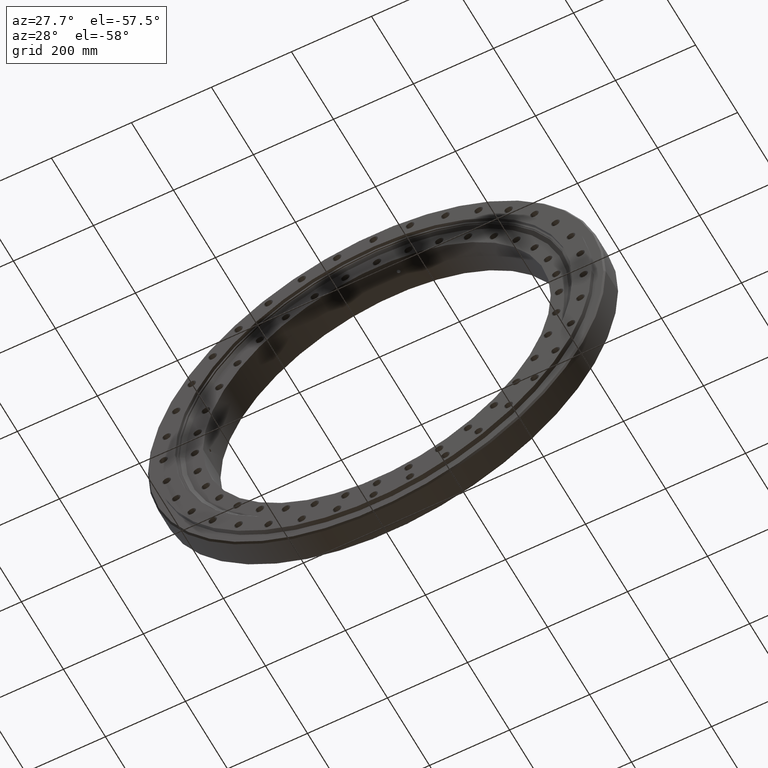
[diagram: clean part render]
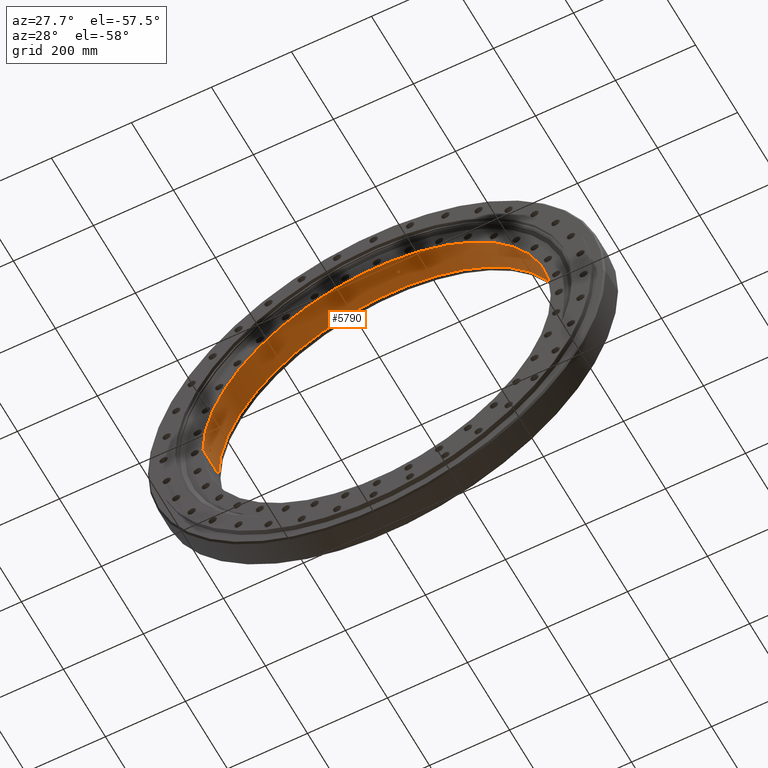
[diagram: same view with one face highlighted and labeled with its STEP entity id]
A machine part, auxiliary view. The second image highlights one B-rep face of the part: STEP entity #5790.
In plain terms, the highlighted cylindrical surface (partial cylindrical patch) has radius 434.5 mm, axis along (0, 1, 0).
Its self-contained STEP definition (entity closure, byte-faithful):
#2 = CARTESIAN_POINT ( 'NONE',  ( -433.0374636575012300, 3.904599707419790500, 35.62112478823369300 ) ) ;
#13 = VERTEX_POINT ( 'NONE', #8801 ) ;
#28 = CARTESIAN_POINT ( 'NONE',  ( -433.0771731805378400, 3.578754350650498000, 35.13504706208550500 ) ) ;
#38 = CARTESIAN_POINT ( 'NONE',  ( -433.1290335322051400, 2.972765572001586400, 34.48962820245196800 ) ) ;
#63 = CARTESIAN_POINT ( 'NONE',  ( -433.1803683367097600, 1.994555008645433600, 33.83831032099117000 ) ) ;
#97 = CARTESIAN_POINT ( 'NONE',  ( -433.1437837102849900, 2.744956606756875100, 34.30363231103421400 ) ) ;
#117 = VERTEX_POINT ( 'NONE', #360 ) ;
#215 = CARTESIAN_POINT ( 'NONE',  ( -433.2155825675864700, 6.637964052413518400E-009, 33.38426306849773800 ) ) ;
#313 = CARTESIAN_POINT ( 'NONE',  ( -433.2133241049115200, 0.5919623323893523600, 33.41360688904765700 ) ) ;
#360 = CARTESIAN_POINT ( 'NONE',  ( 434.5000000000000000, -31.50000000000004300, 5.321090342295249800E-014 ) ) ;
#485 = EDGE_CURVE ( 'NONE', #117, #8745, #2660, .T. ) ;
#487 = VERTEX_POINT ( 'NONE', #215 ) ;
#746 = ORIENTED_EDGE ( 'NONE', *, *, #1013, .T. ) ;
#978 = DIRECTION ( 'NONE',  ( -1.000000000000000000, 2.395475455894325200E-017, 0.0000000000000000000 ) ) ;
#984 = CARTESIAN_POINT ( 'NONE',  ( -434.5000000000000000, 31.02910628019325400, 0.0000000000000000000 ) ) ;
#1013 = EDGE_CURVE ( 'NONE', #13, #487, #4119, .T. ) ;
#1160 = B_SPLINE_CURVE_WITH_KNOTS ( 'NONE', 3,
 ( #4623, #6303, #5236, #5119, #5019, #7438, #5431, #6713, #3748, #2891, #5825, #6571, #2464, #8247, #6084, #6171, #8232, #6867, #6061, #6264, #7830, #6876, #7851, #6785, #4828, #5064, #5368, #5968, #5036, #7170, #5978, #5883, #4778, #4958 ),
 .UNSPECIFIED., .F., .F.,
 ( 4, 2, 2, 2, 2, 2, 2, 2, 2, 2, 2, 2, 2, 2, 2, 2, 4 ),
 ( 0.01406915167869698100, 0.01494827514178797900, 0.01582739860487897600, 0.01670652206796997500, 0.01758564553106097300, 0.01846476899415197200, 0.01934389245724296700, 0.02022301592033396600, 0.02110213938342496400, 0.02198126284651596300, 0.02286038630960696100, 0.02373950977269796000, 0.02461863323578895900, 0.02549775669887995700, 0.02637688016197095600, 0.02725600362506195100, 0.02813512708815295000 ),
 .UNSPECIFIED. ) ;
#1207 = CARTESIAN_POINT ( 'NONE',  ( -433.1693934311617800, 2.257526789093735200, 33.97871614808489200 ) ) ;
#1236 = CARTESIAN_POINT ( 'NONE',  ( -433.0954764404812600, 3.392749482292282800, 34.90848648792938000 ) ) ;
#1400 = CARTESIAN_POINT ( 'NONE',  ( 34.30363231103572000, 2.744956606756871600, 433.1437837102847700 ) ) ;
#1426 = EDGE_CURVE ( 'NONE', #8745, #1707, #1700, .T. ) ;
#1516 = CARTESIAN_POINT ( 'NONE',  ( 42.35001535132498400, 6.637964829185519400E-009, 432.4311808828574000 ) ) ;
#1534 = EDGE_LOOP ( 'NONE', ( #7889, #4565 ) ) ;
#1619 = CARTESIAN_POINT ( 'NONE',  ( 39.03264915551811500, 4.355842356104124800, 432.7433265491052900 ) ) ;
#1700 = CIRCLE ( 'NONE', #3020, 434.5000000000000000 ) ;
#1707 = VERTEX_POINT ( 'NONE', #2573 ) ;
#1715 = AXIS2_PLACEMENT_3D ( 'NONE', #3576, #2064, #978 ) ;
#1793 = CARTESIAN_POINT ( 'NONE',  ( 42.20718503618945800, 1.164869531272804300, 432.4451488908918600 ) ) ;
#1817 = CARTESIAN_POINT ( 'NONE',  ( 434.5000000000000000, 31.02910628019323300, 5.321090342295249800E-014 ) ) ;
#1850 = B_SPLINE_CURVE_WITH_KNOTS ( 'NONE', 3,
 ( #2701, #7163, #5446, #4654, #5512, #6399, #5509, #4641, #6635, #4640, #5497, #5486, #5469, #5668, #5700, #5689, #5246, #5202, #5192, #7934, #5144, #5844, #5059, #4917, #4601, #5589, #5048, #5547, #5259, #4579, #4625, #6861, #5300, #5635 ),
 .UNSPECIFIED., .F., .F.,
 ( 4, 2, 2, 2, 2, 2, 2, 2, 2, 2, 2, 2, 2, 2, 2, 2, 4 ),
 ( 0.01406915167869698800, 0.01494827514178798600, 0.01582739860487898700, 0.01670652206796998500, 0.01758564553106098400, 0.01846476899415198200, 0.01934389245724298100, 0.02022301592033398000, 0.02110213938342497800, 0.02198126284651597700, 0.02286038630960697500, 0.02373950977269797400, 0.02461863323578897300, 0.02549775669887997100, 0.02637688016197097000, 0.02725600362506196800, 0.02813512708815296700 ),
 .UNSPECIFIED. ) ;
#2064 = DIRECTION ( 'NONE',  ( 2.727064569436389700E-017, 1.000000000000000000, 0.0000000000000000000 ) ) ;
#2307 = AXIS2_PLACEMENT_3D ( 'NONE', #6684, #7716, #2896 ) ;
#2327 = ORIENTED_EDGE ( 'NONE', *, *, #485, .F. ) ;
#2380 = CARTESIAN_POINT ( 'NONE',  ( 434.5000000000000000, 42.49999999999991500, 5.321090342295249800E-014 ) ) ;
#2437 = CARTESIAN_POINT ( 'NONE',  ( 39.85441053610423300, 4.045120570742950500, 432.6684056949433700 ) ) ;
#2443 = CARTESIAN_POINT ( 'NONE',  ( 35.88379386528118400, 4.045563657391223700, 433.0157936515178100 ) ) ;
#2462 = CARTESIAN_POINT ( 'NONE',  ( 34.48962820245348100, 2.972765572001586900, 433.1290335322049700 ) ) ;
#2464 = CARTESIAN_POINT ( 'NONE',  ( -433.0162404187527200, -4.042875108975554400, 35.87839931879109700 ) ) ;
#2529 = CARTESIAN_POINT ( 'NONE',  ( -433.2155825675864700, 6.637964052413518400E-009, 33.38426306849773800 ) ) ;
#2573 = CARTESIAN_POINT ( 'NONE',  ( -434.5000000000000000, 42.49999999999991500, 0.0000000000000000000 ) ) ;
#2577 = CARTESIAN_POINT ( 'NONE',  ( 38.16315074150517700, 4.499895690619876400, 432.8208752737721200 ) ) ;
#2625 = CARTESIAN_POINT ( 'NONE',  ( 41.24417892313981300, 2.974982233967884400, 432.5381033173731600 ) ) ;
#2660 = LINE ( 'NONE', #1817, #8462 ) ;
#2685 = FACE_BOUND ( 'NONE', #7898, .T. ) ;
#2701 = CARTESIAN_POINT ( 'NONE',  ( 33.38426306849925100, 6.637964052413520000E-009, 433.2155825675863500 ) ) ;
#2759 = DIRECTION ( 'NONE',  ( 2.727064569436389700E-017, 1.000000000000000000, 0.0000000000000000000 ) ) ;
#2872 = CARTESIAN_POINT ( 'NONE',  ( 36.70628219682127000, 4.355941297530539400, 432.9468583213486600 ) ) ;
#2891 = CARTESIAN_POINT ( 'NONE',  ( -433.0959432817362500, -3.387315570326025600, 34.90267731088765400 ) ) ;
#2896 = DIRECTION ( 'NONE',  ( -1.000000000000000000, 3.193967274525766700E-017, 0.0000000000000000000 ) ) ;
#3020 = AXIS2_PLACEMENT_3D ( 'NONE', #3380, #3382, #3267 ) ;
#3023 = CARTESIAN_POINT ( 'NONE',  ( 41.43343276022952900, 2.743370451744398900, 432.5199964428794600 ) ) ;
#3055 = CARTESIAN_POINT ( 'NONE',  ( 42.35001535132498400, 0.2973276140941214000, 432.4311808828572900 ) ) ;
#3198 = CARTESIAN_POINT ( 'NONE',  ( 42.12105492972209200, 1.450674122875361500, 432.4535576136622700 ) ) ;
#3207 = CARTESIAN_POINT ( 'NONE',  ( -433.0157936515179800, 4.045563657391222800, 35.88379386527967800 ) ) ;
#3219 = CARTESIAN_POINT ( 'NONE',  ( -432.6442831600647900, 3.905344257071405900, 40.11526849472515700 ) ) ;
#3267 = DIRECTION ( 'NONE',  ( -1.000000000000000000, 0.0000000000000000000, 0.0000000000000000000 ) ) ;
#3293 = CARTESIAN_POINT ( 'NONE',  ( -432.7433265491053500, 4.355842356104121300, 39.03264915551660900 ) ) ;
#3305 = EDGE_CURVE ( 'NONE', #3929, #8710, #3353, .T. ) ;
#3307 = CARTESIAN_POINT ( 'NONE',  ( -432.7177453912999600, 4.269500652078852100, 39.31508806113228600 ) ) ;
#3322 = CARTESIAN_POINT ( 'NONE',  ( 39.31508806113379300, 4.269500652078853000, 432.7177453912996700 ) ) ;
#3353 = B_SPLINE_CURVE_WITH_KNOTS ( 'NONE', 3,
 ( #1516, #3055, #3809, #1793, #3198, #7317, #4164, #3023, #2625, #6487, #6834, #6604, #2437, #3322, #1619, #4526, #2577, #8511, #6690, #2872, #8160, #2443, #6530, #7734, #6659, #2462, #1400, #3852, #3792, #7505, #6169, #4726, #3933, #3988 ),
 .UNSPECIFIED., .F., .F.,
 ( 4, 2, 2, 2, 2, 2, 2, 2, 2, 2, 2, 2, 2, 2, 2, 2, 4 ),
 ( 2.183248074406085200E-018, 0.0008793219799185637900, 0.001758643959837125400, 0.002637965939755686800, 0.003517287919674248700, 0.004396609899592810900, 0.005275931879511371900, 0.006155253859429933800, 0.007034575839348495600, 0.007913897819267056600, 0.008793219799185618400, 0.009672541779104180300, 0.01055186375902274000, 0.01143118573894130200, 0.01231050771885986400, 0.01318982969877842600, 0.01406915167869698800 ),
 .UNSPECIFIED. ) ;
#3358 = ORIENTED_EDGE ( 'NONE', *, *, #5120, .T. ) ;
#3380 = CARTESIAN_POINT ( 'NONE',  ( 2.005186205590374900E-015, 42.49999999999991500, 0.0000000000000000000 ) ) ;
#3382 = DIRECTION ( 'NONE',  ( -0.0000000000000000000, -1.000000000000000000, -0.0000000000000000000 ) ) ;
#3388 = CARTESIAN_POINT ( 'NONE',  ( -432.8977169013027200, 4.470844688872517700, 37.28136243055198700 ) ) ;
#3419 = CARTESIAN_POINT ( 'NONE',  ( -432.8720393330029900, 4.500103757308526300, 37.57836759307173200 ) ) ;
#3439 = CARTESIAN_POINT ( 'NONE',  ( -432.8208752737721700, 4.499895690619876400, 38.16315074150365700 ) ) ;
#3446 = CARTESIAN_POINT ( 'NONE',  ( -432.7951276124038600, 4.471353998556145900, 38.45402303851145100 ) ) ;
#3576 = CARTESIAN_POINT ( 'NONE',  ( 1.692367527159823000E-015, 31.02910628019324300, 0.0000000000000000000 ) ) ;
#3622 = LINE ( 'NONE', #984, #4199 ) ;
#3634 = CARTESIAN_POINT ( 'NONE',  ( 33.38426306849925100, 6.637964052413520000E-009, 433.2155825675863500 ) ) ;
#3748 = CARTESIAN_POINT ( 'NONE',  ( -433.1290492069080100, -2.972154527333182600, 34.48941437143707100 ) ) ;
#3792 = CARTESIAN_POINT ( 'NONE',  ( 33.83831032099267600, 1.994555008645433100, 433.1803683367097100 ) ) ;
#3809 = CARTESIAN_POINT ( 'NONE',  ( 42.32097475310098400, 0.5896857251151350600, 432.4340277590238800 ) ) ;
#3852 = CARTESIAN_POINT ( 'NONE',  ( 33.97871614808639200, 2.257526789093731600, 433.1693934311615000 ) ) ;
#3929 = VERTEX_POINT ( 'NONE', #8551 ) ;
#3933 = CARTESIAN_POINT ( 'NONE',  ( 33.38426306849925100, 0.2936965947589150200, 433.2155825675864100 ) ) ;
#3988 = CARTESIAN_POINT ( 'NONE',  ( 33.38426306849925100, 6.637964052413520000E-009, 433.2155825675863500 ) ) ;
#4119 = B_SPLINE_CURVE_WITH_KNOTS ( 'NONE', 3,
 ( #8896, #8814, #8762, #8750, #8743, #8741, #7233, #7251, #8519, #7276, #8731, #3219, #5619, #3307, #3293, #3446, #3439, #3419, #3388, #8681, #4282, #3207, #2, #28, #1236, #38, #97, #1207, #63, #7848, #6160, #313, #7435, #2529 ),
 .UNSPECIFIED., .F., .F.,
 ( 4, 2, 2, 2, 2, 2, 2, 2, 2, 2, 2, 2, 2, 2, 2, 2, 4 ),
 ( 1.141874489184473000E-018, 0.0008793219799185609700, 0.001758643959837120600, 0.002637965939755681200, 0.003517287919674242200, 0.004396609899592803100, 0.005275931879511364100, 0.006155253859429926000, 0.007034575839348486900, 0.007913897819267049600, 0.008793219799185609700, 0.009672541779104171600, 0.01055186375902273300, 0.01143118573894129500, 0.01231050771885985700, 0.01318982969877841700, 0.01406915167869698100 ),
 .UNSPECIFIED. ) ;
#4164 = CARTESIAN_POINT ( 'NONE',  ( 41.75857143606785400, 2.254172641134395900, 432.4887263095579900 ) ) ;
#4199 = VECTOR ( 'NONE', #2759, 1000.000000000000000 ) ;
#4282 = CARTESIAN_POINT ( 'NONE',  ( -432.9704564998753000, 4.270947915774015300, 36.42674857998591900 ) ) ;
#4345 = EDGE_LOOP ( 'NONE', ( #2327, #7635, #3358, #4866 ) ) ;
#4513 = FACE_OUTER_BOUND ( 'NONE', #4345, .T. ) ;
#4516 = CARTESIAN_POINT ( 'NONE',  ( -434.5000000000000000, -31.50000000000001400, 0.0000000000000000000 ) ) ;
#4526 = CARTESIAN_POINT ( 'NONE',  ( 38.45402303851296500, 4.471353998556145900, 432.7951276124038000 ) ) ;
#4565 = ORIENTED_EDGE ( 'NONE', *, *, #8207, .T. ) ;
#4579 = CARTESIAN_POINT ( 'NONE',  ( 42.11920295704316400, -1.455751492898972100, 432.4537378550976400 ) ) ;
#4601 = CARTESIAN_POINT ( 'NONE',  ( 40.82884338236299700, -3.391800875043286600, 432.5775060662691700 ) ) ;
#4623 = CARTESIAN_POINT ( 'NONE',  ( -433.2155825675864700, 6.637964052413518400E-009, 33.38426306849773800 ) ) ;
#4625 = CARTESIAN_POINT ( 'NONE',  ( 42.20508617102623100, -1.173646030593314100, 432.4453538789281900 ) ) ;
#4640 = CARTESIAN_POINT ( 'NONE',  ( 34.90267731088916000, -3.387315570326025600, 433.0959432817360800 ) ) ;
#4641 = CARTESIAN_POINT ( 'NONE',  ( 34.30374165114061200, -2.745438725071159200, 433.1437756590626700 ) ) ;
#4646 = FACE_BOUND ( 'NONE', #1534, .T. ) ;
#4654 = CARTESIAN_POINT ( 'NONE',  ( 33.52733253529919500, -1.165417203309397000, 433.2045374659136900 ) ) ;
#4726 = CARTESIAN_POINT ( 'NONE',  ( 33.41360688904915600, 0.5919623323893533600, 433.2133241049113500 ) ) ;
#4778 = CARTESIAN_POINT ( 'NONE',  ( -432.4311808828575700, -0.2972604757664756800, 42.35001535132346400 ) ) ;
#4828 = CARTESIAN_POINT ( 'NONE',  ( -432.5775060662695100, -3.391800875043290600, 40.82884338236148400 ) ) ;
#4851 = CYLINDRICAL_SURFACE ( 'NONE', #1715, 434.5000000000000000 ) ;
#4866 = ORIENTED_EDGE ( 'NONE', *, *, #1426, .F. ) ;
#4917 = CARTESIAN_POINT ( 'NONE',  ( 40.59803262821609600, -3.581690878517647600, 432.5992481641980000 ) ) ;
#4958 = CARTESIAN_POINT ( 'NONE',  ( -432.4311808828575200, 6.637962326328891700E-009, 42.35001535132347100 ) ) ;
#5019 = CARTESIAN_POINT ( 'NONE',  ( -433.1978708877689400, -1.449887524020145600, 33.61349751919960500 ) ) ;
#5036 = CARTESIAN_POINT ( 'NONE',  ( -432.4754790182654500, -1.997039436460990900, 41.89537791336832100 ) ) ;
#5048 = CARTESIAN_POINT ( 'NONE',  ( 41.42819436716753500, -2.750359883711414300, 432.5204986491460200 ) ) ;
#5059 = CARTESIAN_POINT ( 'NONE',  ( 40.11120626622488300, -3.907535809011369200, 432.6446589262133100 ) ) ;
#5064 = CARTESIAN_POINT ( 'NONE',  ( -432.5382436357904800, -2.976678907166466500, 41.24270843337455300 ) ) ;
#5119 = CARTESIAN_POINT ( 'NONE',  ( -433.2045374659137500, -1.165417203309394800, 33.52733253529768100 ) ) ;
#5120 = EDGE_CURVE ( 'NONE', #7177, #1707, #3622, .T. ) ;
#5144 = CARTESIAN_POINT ( 'NONE',  ( 39.31015623875568800, -4.271334378078344200, 432.7181947883135500 ) ) ;
#5192 = CARTESIAN_POINT ( 'NONE',  ( 38.45344534380721100, -4.471227324604893000, 432.7951769558700900 ) ) ;
#5202 = CARTESIAN_POINT ( 'NONE',  ( 38.16096605951525300, -4.500248089098112900, 432.8210700724542300 ) ) ;
#5236 = CARTESIAN_POINT ( 'NONE',  ( -433.2133983649754300, -0.5854546264718805100, 33.41264408959497000 ) ) ;
#5246 = CARTESIAN_POINT ( 'NONE',  ( 37.56982914815139900, -4.499748710604370300, 432.8727826591071400 ) ) ;
#5259 = CARTESIAN_POINT ( 'NONE',  ( 41.89537791336983500, -1.997039436460982700, 432.4754790182652200 ) ) ;
#5300 = CARTESIAN_POINT ( 'NONE',  ( 42.35001535132498400, -0.2972604757664760700, 432.4311808828573500 ) ) ;
#5368 = CARTESIAN_POINT ( 'NONE',  ( -432.5204986491462500, -2.750359883711416500, 41.42819436716602900 ) ) ;
#5431 = CARTESIAN_POINT ( 'NONE',  ( -433.1696370397022500, -2.252558273748033600, 33.97561817464558200 ) ) ;
#5446 = CARTESIAN_POINT ( 'NONE',  ( 33.41264408959646200, -0.5854546264718821800, 433.2133983649753200 ) ) ;
#5469 = CARTESIAN_POINT ( 'NONE',  ( 35.87839931879261000, -4.042875108975554400, 433.0162404187525500 ) ) ;
#5486 = CARTESIAN_POINT ( 'NONE',  ( 35.62092463396994900, -3.904564216417030700, 433.0374805984832800 ) ) ;
#5497 = CARTESIAN_POINT ( 'NONE',  ( 35.13316265913988400, -3.577391995984359400, 433.0773265323723500 ) ) ;
#5509 = CARTESIAN_POINT ( 'NONE',  ( 33.97561817464708900, -2.252558273748038100, 433.1696370397021400 ) ) ;
#5512 = CARTESIAN_POINT ( 'NONE',  ( 33.61349751920111800, -1.449887524020150800, 433.1978708877687700 ) ) ;
#5547 = CARTESIAN_POINT ( 'NONE',  ( 41.75556241820388700, -2.259569865463237000, 432.4890172563567000 ) ) ;
#5589 = CARTESIAN_POINT ( 'NONE',  ( 41.24270843337608000, -2.976678907166461700, 432.5382436357903700 ) ) ;
#5619 = CARTESIAN_POINT ( 'NONE',  ( -432.6684056949434300, 4.045120570742950500, 39.85441053610273300 ) ) ;
#5635 = CARTESIAN_POINT ( 'NONE',  ( 42.35001535132498400, 6.637964829185519400E-009, 432.4311808828574000 ) ) ;
#5668 = CARTESIAN_POINT ( 'NONE',  ( 36.42058681919775200, -4.268829863394195500, 432.9709746158685600 ) ) ;
#5689 = CARTESIAN_POINT ( 'NONE',  ( 37.27884587939614400, -4.470445640292257200, 432.8979329618972000 ) ) ;
#5700 = CARTESIAN_POINT ( 'NONE',  ( 36.70573769866591400, -4.355728153560956900, 432.9469038263004000 ) ) ;
#5768 = ORIENTED_EDGE ( 'NONE', *, *, #8241, .T. ) ;
#5790 = ADVANCED_FACE ( 'NONE', ( #4513, #4646, #2685 ), #4851, .F. ) ;
#5825 = CARTESIAN_POINT ( 'NONE',  ( -433.0773265323725200, -3.577391995984359400, 35.13316265913836400 ) ) ;
#5844 = CARTESIAN_POINT ( 'NONE',  ( 39.85372313373152800, -4.045622400831324400, 432.6684703520145400 ) ) ;
#5883 = CARTESIAN_POINT ( 'NONE',  ( -432.4340269553736700, -0.5914368857770334600, 42.32098440885261700 ) ) ;
#5968 = CARTESIAN_POINT ( 'NONE',  ( -432.4890172563568700, -2.259569865463239700, 41.75556241820238800 ) ) ;
#5978 = CARTESIAN_POINT ( 'NONE',  ( -432.4453538789283000, -1.173646030593317600, 42.20508617102471000 ) ) ;
#6061 = CARTESIAN_POINT ( 'NONE',  ( -432.7951769558702600, -4.471227324604892100, 38.45344534380569700 ) ) ;
#6084 = CARTESIAN_POINT ( 'NONE',  ( -432.9469038263005100, -4.355728153560956900, 36.70573769866440700 ) ) ;
#6160 = CARTESIAN_POINT ( 'NONE',  ( -433.2044637908122100, 1.168564348647414200, 33.52828446368310000 ) ) ;
#6169 = CARTESIAN_POINT ( 'NONE',  ( 33.52828446368460600, 1.168564348647415300, 433.2044637908121000 ) ) ;
#6171 = CARTESIAN_POINT ( 'NONE',  ( -432.8979329618974200, -4.470445640292257200, 37.27884587939463000 ) ) ;
#6264 = CARTESIAN_POINT ( 'NONE',  ( -432.7439106145392300, -4.357378540987146400, 39.02615124641304300 ) ) ;
#6303 = CARTESIAN_POINT ( 'NONE',  ( -433.2155825675863000, -0.2936302761747243100, 33.38426306849773100 ) ) ;
#6399 = CARTESIAN_POINT ( 'NONE',  ( 33.83693893963778300, -1.991448773239265800, 433.1804752298567100 ) ) ;
#6411 = CIRCLE ( 'NONE', #2307, 434.5000000000000000 ) ;
#6487 = CARTESIAN_POINT ( 'NONE',  ( 40.83074539171125400, 3.390113032432390500, 432.5773264367791700 ) ) ;
#6507 = DIRECTION ( 'NONE',  ( 2.727064569436389700E-017, 1.000000000000000000, 0.0000000000000000000 ) ) ;
#6530 = CARTESIAN_POINT ( 'NONE',  ( 35.62112478823519300, 3.904599707419787800, 433.0374636575009500 ) ) ;
#6571 = CARTESIAN_POINT ( 'NONE',  ( -433.0374805984831700, -3.904564216417031100, 35.62092463396843600 ) ) ;
#6604 = CARTESIAN_POINT ( 'NONE',  ( 40.11526849472666400, 3.905344257071406300, 432.6442831600646700 ) ) ;
#6635 = CARTESIAN_POINT ( 'NONE',  ( 34.48941437143858500, -2.972154527333182600, 433.1290492069080100 ) ) ;
#6659 = CARTESIAN_POINT ( 'NONE',  ( 34.90848648793090100, 3.392749482292284100, 433.0954764404811500 ) ) ;
#6684 = CARTESIAN_POINT ( 'NONE',  ( -1.284157579255207000E-017, -31.50000000000002800, 0.0000000000000000000 ) ) ;
#6690 = CARTESIAN_POINT ( 'NONE',  ( 37.28136243055350000, 4.470844688872517700, 432.8977169013026600 ) ) ;
#6713 = CARTESIAN_POINT ( 'NONE',  ( -433.1437756590630100, -2.745438725071154700, 34.30374165113912000 ) ) ;
#6735 = EDGE_CURVE ( 'NONE', #7177, #117, #6411, .T. ) ;
#6785 = CARTESIAN_POINT ( 'NONE',  ( -432.5992481641981200, -3.581690878517652400, 40.59803262821456100 ) ) ;
#6834 = CARTESIAN_POINT ( 'NONE',  ( 40.60514735649871900, 3.576389277894958000, 432.5985812802063600 ) ) ;
#6861 = CARTESIAN_POINT ( 'NONE',  ( 42.32098440885412300, -0.5914368857770295800, 432.4340269553736700 ) ) ;
#6867 = CARTESIAN_POINT ( 'NONE',  ( -432.8210700724544600, -4.500248089098113800, 38.16096605951374000 ) ) ;
#6876 = CARTESIAN_POINT ( 'NONE',  ( -432.6684703520147100, -4.045622400831325300, 39.85372313373001400 ) ) ;
#7163 = CARTESIAN_POINT ( 'NONE',  ( 33.38426306849924400, -0.2936302761747253700, 433.2155825675863000 ) ) ;
#7170 = CARTESIAN_POINT ( 'NONE',  ( -432.4537378550976400, -1.455751492898981600, 42.11920295704164400 ) ) ;
#7177 = VERTEX_POINT ( 'NONE', #4516 ) ;
#7233 = CARTESIAN_POINT ( 'NONE',  ( -432.4887263095582700, 2.254172641134396700, 41.75857143606635400 ) ) ;
#7251 = CARTESIAN_POINT ( 'NONE',  ( -432.5199964428794600, 2.743370451744397500, 41.43343276022801500 ) ) ;
#7276 = CARTESIAN_POINT ( 'NONE',  ( -432.5773264367793400, 3.390113032432388700, 40.83074539170975500 ) ) ;
#7317 = CARTESIAN_POINT ( 'NONE',  ( 41.89618322568781400, 1.995683553930035300, 432.4754011411808400 ) ) ;
#7435 = CARTESIAN_POINT ( 'NONE',  ( -433.2155825675866400, 0.2936965947589156300, 33.38426306849776600 ) ) ;
#7438 = CARTESIAN_POINT ( 'NONE',  ( -433.1804752298569400, -1.991448773239261200, 33.83693893963627600 ) ) ;
#7505 = CARTESIAN_POINT ( 'NONE',  ( 33.61309180770979300, 1.449120904882258400, 433.1979025997629800 ) ) ;
#7635 = ORIENTED_EDGE ( 'NONE', *, *, #6735, .F. ) ;
#7716 = DIRECTION ( 'NONE',  ( 2.727064569436389700E-017, 1.000000000000000000, 0.0000000000000000000 ) ) ;
#7734 = CARTESIAN_POINT ( 'NONE',  ( 35.13504706208702500, 3.578754350650494900, 433.0771731805376700 ) ) ;
#7830 = CARTESIAN_POINT ( 'NONE',  ( -432.7181947883136700, -4.271334378078343300, 39.31015623875416800 ) ) ;
#7848 = CARTESIAN_POINT ( 'NONE',  ( -433.1979025997629800, 1.449120904882259300, 33.61309180770828700 ) ) ;
#7851 = CARTESIAN_POINT ( 'NONE',  ( -432.6446589262134800, -3.907535809011373700, 40.11120626622337000 ) ) ;
#7889 = ORIENTED_EDGE ( 'NONE', *, *, #3305, .T. ) ;
#7898 = EDGE_LOOP ( 'NONE', ( #746, #5768 ) ) ;
#7934 = CARTESIAN_POINT ( 'NONE',  ( 39.02615124641455700, -4.357378540987143700, 432.7439106145389500 ) ) ;
#8160 = CARTESIAN_POINT ( 'NONE',  ( 36.42674857998742500, 4.270947915774017100, 432.9704564998751300 ) ) ;
#8207 = EDGE_CURVE ( 'NONE', #8710, #3929, #1850, .T. ) ;
#8232 = CARTESIAN_POINT ( 'NONE',  ( -432.8727826591072600, -4.499748710604368500, 37.56982914814987900 ) ) ;
#8241 = EDGE_CURVE ( 'NONE', #487, #13, #1160, .T. ) ;
#8247 = CARTESIAN_POINT ( 'NONE',  ( -432.9709746158685600, -4.268829863394191900, 36.42058681919625200 ) ) ;
#8462 = VECTOR ( 'NONE', #6507, 1000.000000000000000 ) ;
#8511 = CARTESIAN_POINT ( 'NONE',  ( 37.57836759307322400, 4.500103757308526300, 432.8720393330029300 ) ) ;
#8519 = CARTESIAN_POINT ( 'NONE',  ( -432.5381033173733300, 2.974982233967883500, 41.24417892313830000 ) ) ;
#8551 = CARTESIAN_POINT ( 'NONE',  ( 42.35001535132498400, 6.637964829185519400E-009, 432.4311808828574000 ) ) ;
#8681 = CARTESIAN_POINT ( 'NONE',  ( -432.9468583213487700, 4.355941297530539400, 36.70628219681975700 ) ) ;
#8710 = VERTEX_POINT ( 'NONE', #3634 ) ;
#8731 = CARTESIAN_POINT ( 'NONE',  ( -432.5985812802064700, 3.576389277894955300, 40.60514735649721300 ) ) ;
#8741 = CARTESIAN_POINT ( 'NONE',  ( -432.4754011411810700, 1.995683553930034200, 41.89618322568631500 ) ) ;
#8743 = CARTESIAN_POINT ( 'NONE',  ( -432.4535576136625000, 1.450674122875359700, 42.12105492972060000 ) ) ;
#8745 = VERTEX_POINT ( 'NONE', #2380 ) ;
#8750 = CARTESIAN_POINT ( 'NONE',  ( -432.4451488908920900, 1.164869531272804300, 42.20718503618794400 ) ) ;
#8762 = CARTESIAN_POINT ( 'NONE',  ( -432.4340277590239300, 0.5896857251151344000, 42.32097475309946300 ) ) ;
#8801 = CARTESIAN_POINT ( 'NONE',  ( -432.4311808828575200, 6.637962326328891700E-009, 42.35001535132347100 ) ) ;
#8814 = CARTESIAN_POINT ( 'NONE',  ( -432.4311808828575200, 0.2973276140941209500, 42.35001535132347800 ) ) ;
#8896 = CARTESIAN_POINT ( 'NONE',  ( -432.4311808828575200, 6.637962326328891700E-009, 42.35001535132347100 ) ) ;